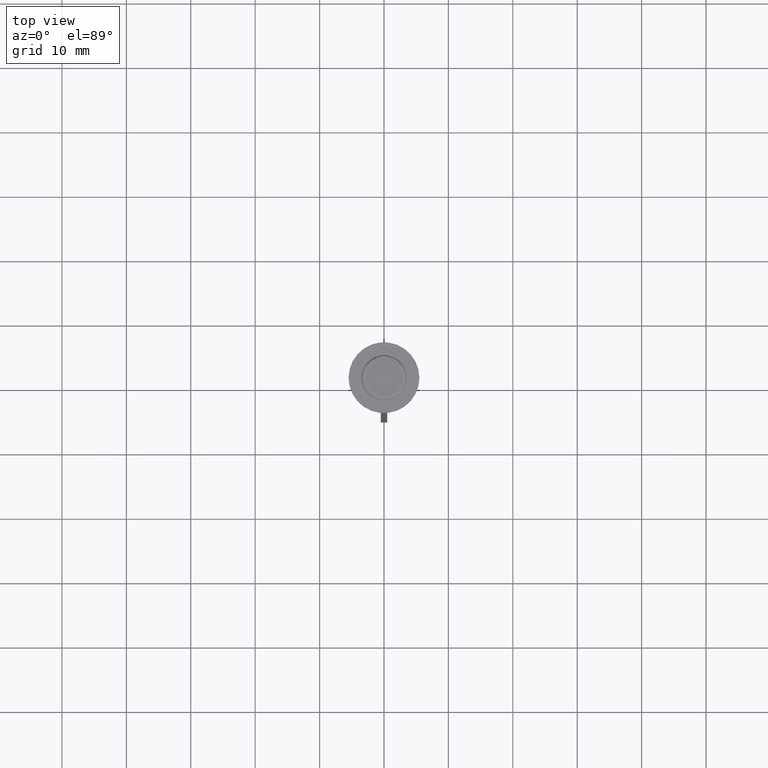
[diagram: clean part render]
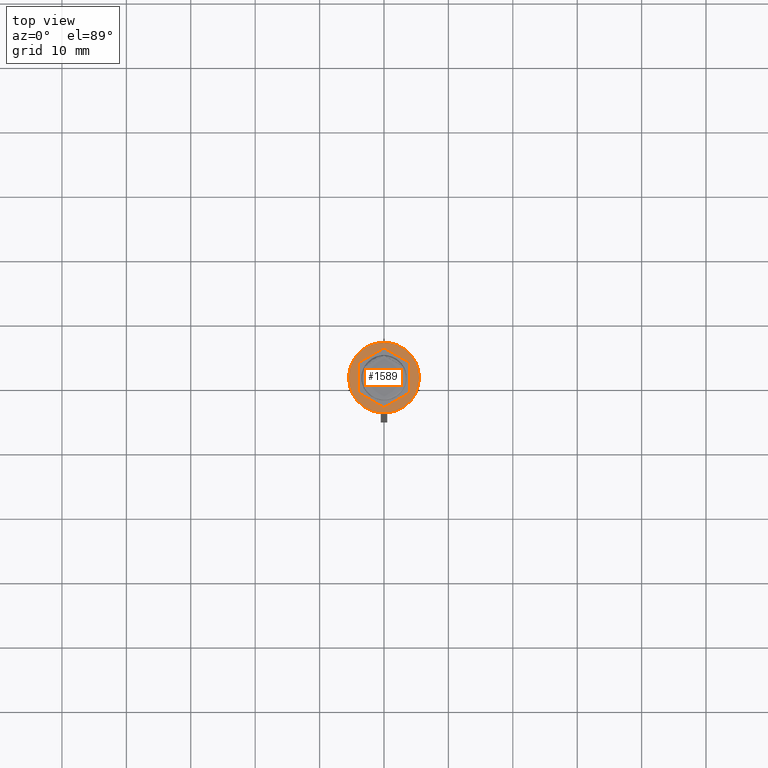
[diagram: same view with one face highlighted and labeled with its STEP entity id]
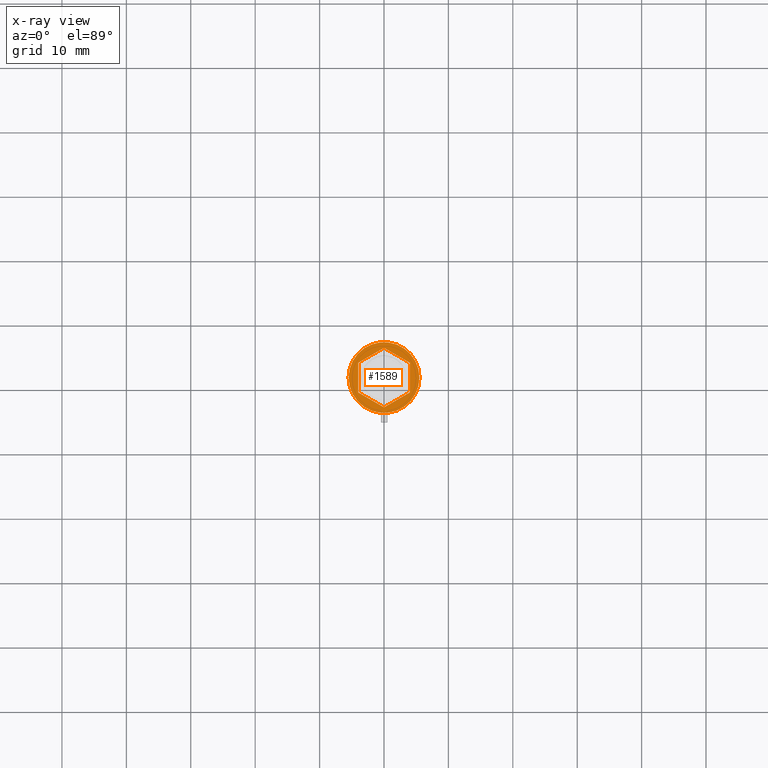
[diagram: x-ray of the same camera — body ghosted, the highlighted face saturated]
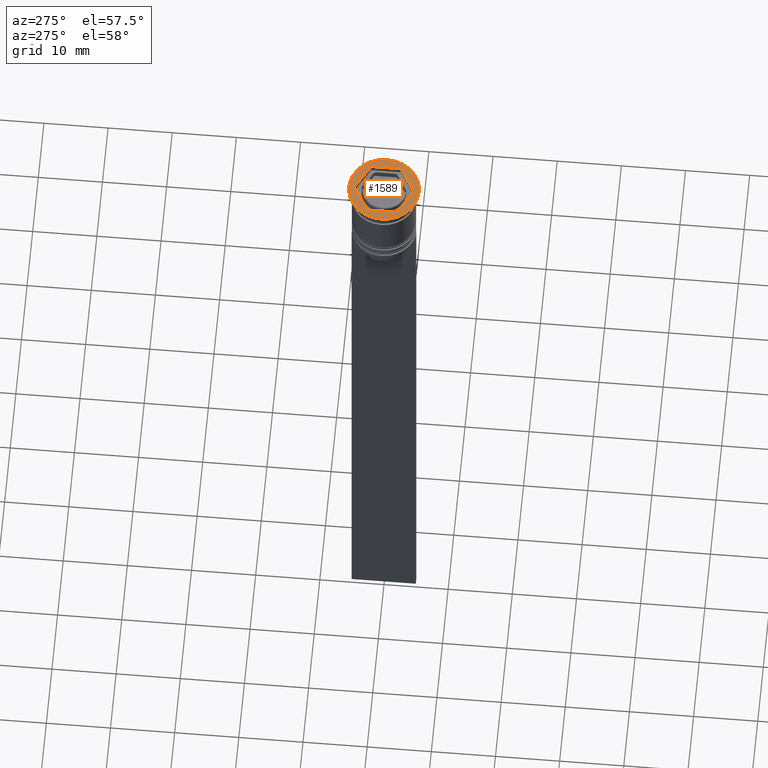
[diagram: same view with one face highlighted and labeled with its STEP entity id]
A machine part, top view. The second image highlights one B-rep face of the part: STEP entity #1589.
The next image is the same camera in x-ray: the body ghosted, the highlighted face saturated — about 0% of this face is hidden behind the body in this view.
A second angle (auxiliary view) of the same face is appended — the face is thin or edge-on in the first view.
In plain terms, the highlighted planar face has unit normal (0, -0, 1).
Its self-contained STEP definition (entity closure, byte-faithful):
#10 = DIRECTION ( 'NONE',  ( 1.000000000000000000, 0.000000000000000000, 0.000000000000000000 ) ) ;
#11 = EDGE_CURVE ( 'NONE', #1709, #1127, #618, .T. ) ;
#34 = CARTESIAN_POINT ( 'NONE',  ( -4.000000000000000000, -2.309401076758503368, 0.000000000000000000 ) ) ;
#53 = CIRCLE ( 'NONE', #2344, 5.500000000000000000 ) ;
#74 = LINE ( 'NONE', #874, #179 ) ;
#143 = FACE_BOUND ( 'NONE', #264, .T. ) ;
#179 = VECTOR ( 'NONE', #1098, 1000.000000000000227 ) ;
#219 = VECTOR ( 'NONE', #2159, 1000.000000000000227 ) ;
#264 = EDGE_LOOP ( 'NONE', ( #520, #1002, #1355, #869, #722, #1718 ) ) ;
#308 = DIRECTION ( 'NONE',  ( 0.000000000000000000, -0.000000000000000000, 1.000000000000000000 ) ) ;
#343 = EDGE_CURVE ( 'NONE', #1640, #839, #53, .T. ) ;
#378 = VECTOR ( 'NONE', #1670, 1000.000000000000000 ) ;
#405 = EDGE_CURVE ( 'NONE', #1127, #2180, #2581, .T. ) ;
#439 = VERTEX_POINT ( 'NONE', #582 ) ;
#520 = ORIENTED_EDGE ( 'NONE', *, *, #679, .F. ) ;
#537 = CARTESIAN_POINT ( 'NONE',  ( -4.000000000000000000, -2.309401076758503368, 0.000000000000000000 ) ) ;
#544 = VECTOR ( 'NONE', #1203, 1000.000000000000000 ) ;
#578 = EDGE_CURVE ( 'NONE', #2180, #2164, #1031, .T. ) ;
#582 = CARTESIAN_POINT ( 'NONE',  ( 0.000000000000000000, 4.618802153517005848, 0.000000000000000000 ) ) ;
#618 = LINE ( 'NONE', #34, #2253 ) ;
#658 = EDGE_CURVE ( 'NONE', #439, #1219, #74, .T. ) ;
#667 = ORIENTED_EDGE ( 'NONE', *, *, #343, .T. ) ;
#678 = EDGE_LOOP ( 'NONE', ( #1228, #667 ) ) ;
#679 = EDGE_CURVE ( 'NONE', #2164, #439, #2512, .T. ) ;
#722 = ORIENTED_EDGE ( 'NONE', *, *, #998, .F. ) ;
#814 = CARTESIAN_POINT ( 'NONE',  ( -4.000000000000000000, 2.309401076758502480, 0.000000000000000000 ) ) ;
#839 = VERTEX_POINT ( 'NONE', #910 ) ;
#869 = ORIENTED_EDGE ( 'NONE', *, *, #11, .F. ) ;
#874 = CARTESIAN_POINT ( 'NONE',  ( 0.000000000000000000, 4.618802153517005848, 0.000000000000000000 ) ) ;
#910 = CARTESIAN_POINT ( 'NONE',  ( 5.500000000000000000, 0.000000000000000000, 0.000000000000000000 ) ) ;
#914 = CARTESIAN_POINT ( 'NONE',  ( 0.000000000000000000, 0.000000000000000000, 0.000000000000000000 ) ) ;
#998 = EDGE_CURVE ( 'NONE', #1219, #1709, #2405, .T. ) ;
#1002 = ORIENTED_EDGE ( 'NONE', *, *, #578, .F. ) ;
#1006 = DIRECTION ( 'NONE',  ( 0.000000000000000000, -1.000000000000000000, 0.000000000000000000 ) ) ;
#1028 = CARTESIAN_POINT ( 'NONE',  ( 4.000000000000000000, -2.309401076758503368, 0.000000000000000000 ) ) ;
#1031 = LINE ( 'NONE', #1386, #544 ) ;
#1041 = AXIS2_PLACEMENT_3D ( 'NONE', #2347, #308, #1939 ) ;
#1098 = DIRECTION ( 'NONE',  ( -0.8660254037844385966, -0.5000000000000000000, 0.000000000000000000 ) ) ;
#1105 = CARTESIAN_POINT ( 'NONE',  ( -4.000000000000000000, 2.309401076758502480, 0.000000000000000000 ) ) ;
#1114 = DIRECTION ( 'NONE',  ( -0.000000000000000000, -0.000000000000000000, 1.000000000000000000 ) ) ;
#1119 = FACE_OUTER_BOUND ( 'NONE', #678, .T. ) ;
#1127 = VERTEX_POINT ( 'NONE', #1275 ) ;
#1173 = AXIS2_PLACEMENT_3D ( 'NONE', #2204, #1773, #10 ) ;
#1203 = DIRECTION ( 'NONE',  ( 0.000000000000000000, 1.000000000000000000, 0.000000000000000000 ) ) ;
#1219 = VERTEX_POINT ( 'NONE', #1105 ) ;
#1228 = ORIENTED_EDGE ( 'NONE', *, *, #1864, .T. ) ;
#1268 = CARTESIAN_POINT ( 'NONE',  ( 4.000000000000000000, 2.309401076758503368, 0.000000000000000000 ) ) ;
#1275 = CARTESIAN_POINT ( 'NONE',  ( 8.729740977282959667E-16, -4.618802153517006737, 0.000000000000000000 ) ) ;
#1344 = CARTESIAN_POINT ( 'NONE',  ( 8.729740977282959667E-16, -4.618802153517006737, 0.000000000000000000 ) ) ;
#1355 = ORIENTED_EDGE ( 'NONE', *, *, #405, .F. ) ;
#1386 = CARTESIAN_POINT ( 'NONE',  ( 4.000000000000000000, -2.309401076758503368, 0.000000000000000000 ) ) ;
#1532 = CARTESIAN_POINT ( 'NONE',  ( -5.500000000000000000, 6.735557395310442023E-16, 0.000000000000000000 ) ) ;
#1584 = CIRCLE ( 'NONE', #1173, 5.500000000000000000 ) ;
#1589 = ADVANCED_FACE ( 'NONE', ( #143, #1119 ), #2546, .T. ) ;
#1640 = VERTEX_POINT ( 'NONE', #1532 ) ;
#1670 = DIRECTION ( 'NONE',  ( -0.8660254037844387076, 0.4999999999999998890, 0.000000000000000000 ) ) ;
#1709 = VERTEX_POINT ( 'NONE', #537 ) ;
#1718 = ORIENTED_EDGE ( 'NONE', *, *, #658, .F. ) ;
#1773 = DIRECTION ( 'NONE',  ( -0.000000000000000000, -0.000000000000000000, 1.000000000000000000 ) ) ;
#1798 = DIRECTION ( 'NONE',  ( 0.8660254037844387076, -0.4999999999999999445, 0.000000000000000000 ) ) ;
#1864 = EDGE_CURVE ( 'NONE', #839, #1640, #1584, .T. ) ;
#1939 = DIRECTION ( 'NONE',  ( 1.000000000000000000, 0.000000000000000000, 0.000000000000000000 ) ) ;
#2159 = DIRECTION ( 'NONE',  ( 0.8660254037844384856, 0.5000000000000001110, 0.000000000000000000 ) ) ;
#2164 = VERTEX_POINT ( 'NONE', #2232 ) ;
#2180 = VERTEX_POINT ( 'NONE', #1028 ) ;
#2204 = CARTESIAN_POINT ( 'NONE',  ( 0.000000000000000000, 0.000000000000000000, 0.000000000000000000 ) ) ;
#2232 = CARTESIAN_POINT ( 'NONE',  ( 4.000000000000000000, 2.309401076758503368, 0.000000000000000000 ) ) ;
#2253 = VECTOR ( 'NONE', #1798, 1000.000000000000000 ) ;
#2344 = AXIS2_PLACEMENT_3D ( 'NONE', #914, #1114, #2494 ) ;
#2347 = CARTESIAN_POINT ( 'NONE',  ( 0.000000000000000000, 0.000000000000000000, 0.000000000000000000 ) ) ;
#2405 = LINE ( 'NONE', #814, #2426 ) ;
#2426 = VECTOR ( 'NONE', #1006, 1000.000000000000000 ) ;
#2494 = DIRECTION ( 'NONE',  ( 1.000000000000000000, 0.000000000000000000, 0.000000000000000000 ) ) ;
#2512 = LINE ( 'NONE', #1268, #378 ) ;
#2546 = PLANE ( 'NONE',  #1041 ) ;
#2581 = LINE ( 'NONE', #1344, #219 ) ;